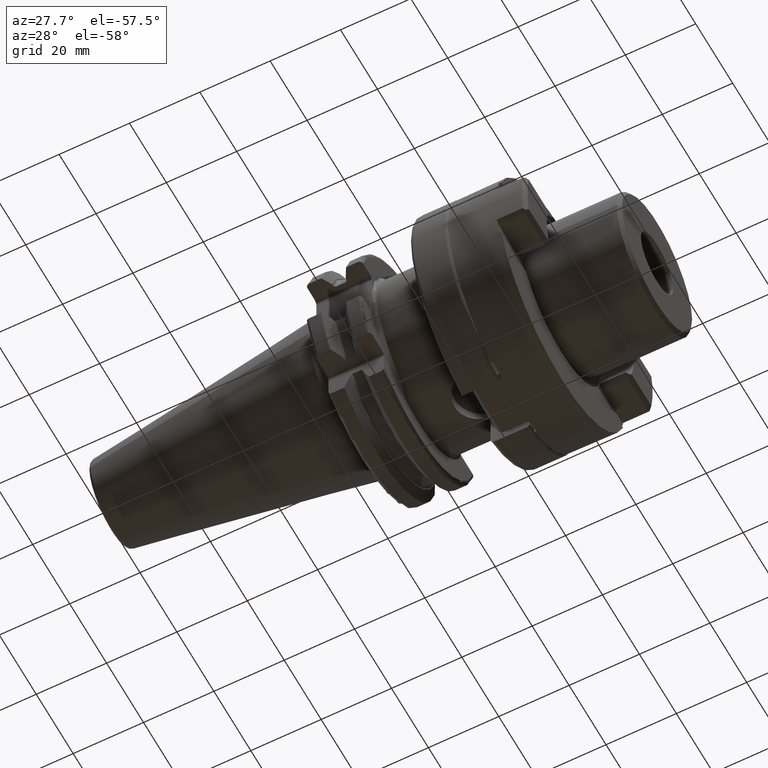
[diagram: clean part render]
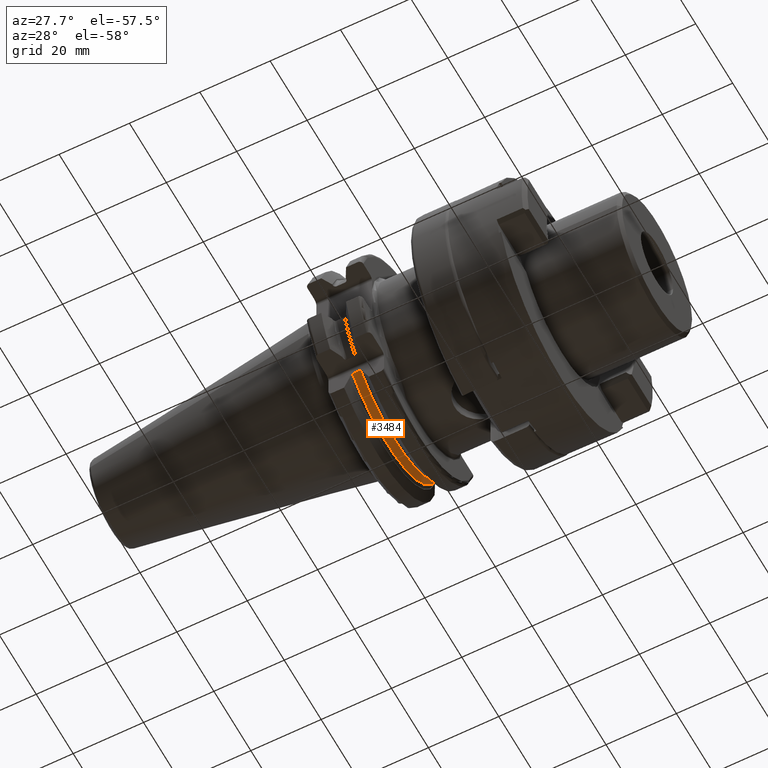
[diagram: same view with one face highlighted and labeled with its STEP entity id]
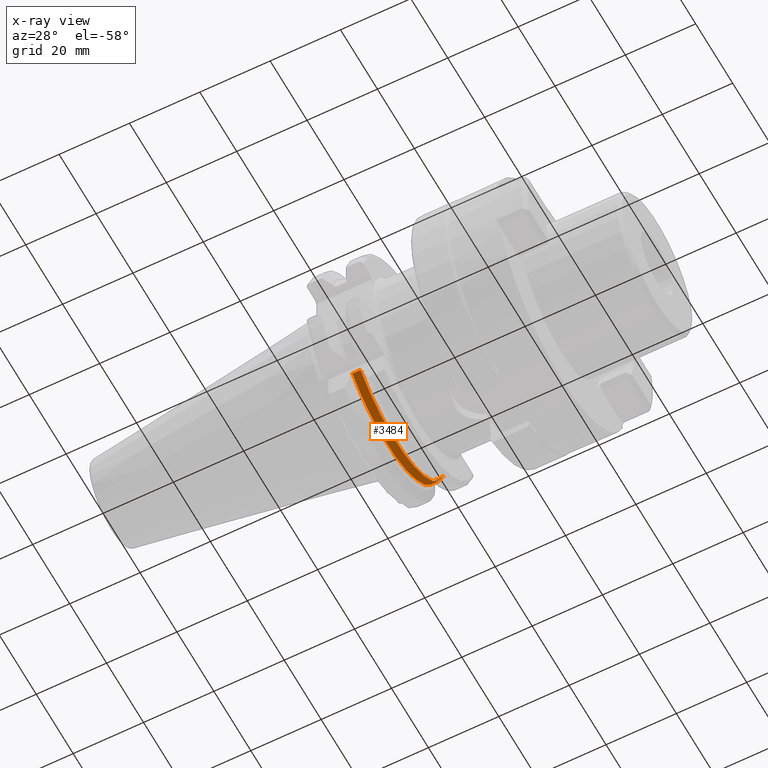
[diagram: x-ray of the same camera — body ghosted, the highlighted face saturated]
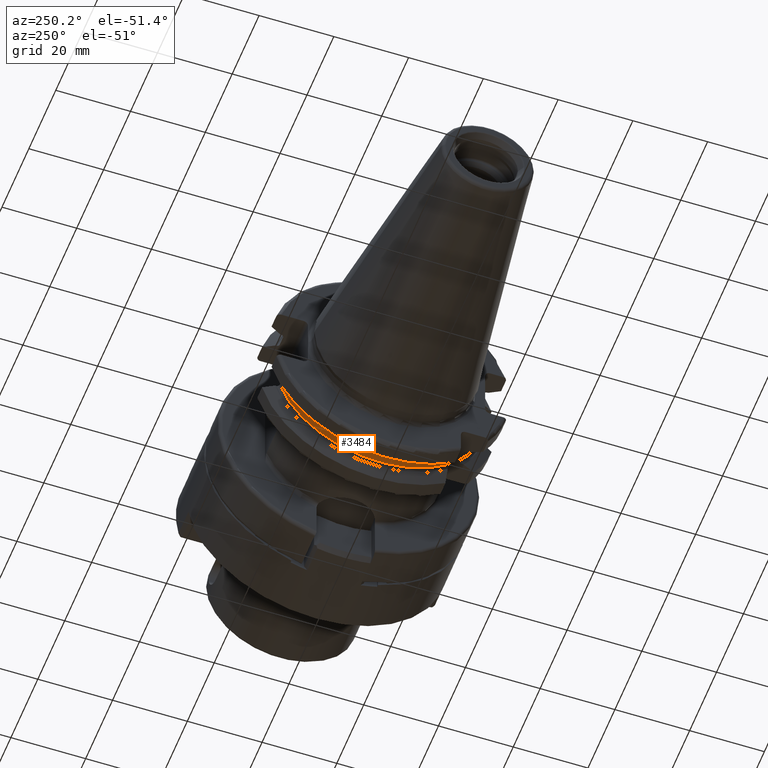
[diagram: same view with one face highlighted and labeled with its STEP entity id]
A machine part, auxiliary view. The second image highlights one B-rep face of the part: STEP entity #3484.
The next image is the same camera in x-ray: the body ghosted, the highlighted face saturated — about 1% of this face is hidden behind the body in this view.
A second angle (auxiliary view) of the same face is appended — the face is thin or edge-on in the first view.
In plain terms, the highlighted cylindrical surface (partial cylindrical patch) has radius 28 mm, axis along (1, 0, 0).
Its self-contained STEP definition (entity closure, byte-faithful):
#1263=CARTESIAN_POINT('',(1.23375E1,0.E0,0.E0));
#1264=DIRECTION('',(-1.E0,0.E0,0.E0));
#1265=DIRECTION('',(0.E0,9.572427986202E-1,-2.892857142857E-1));
#1266=AXIS2_PLACEMENT_3D('',#1263,#1264,#1265);
#1306=DIRECTION('',(1.E0,0.E0,0.E0));
#1307=VECTOR('',#1306,2.325E0);
#1308=CARTESIAN_POINT('',(1.00125E1,2.680279836137E1,-8.1E0));
#1309=LINE('',#1308,#1307);
#1310=CARTESIAN_POINT('',(1.00125E1,0.E0,0.E0));
#1311=DIRECTION('',(-1.E0,0.E0,0.E0));
#1312=DIRECTION('',(0.E0,9.572427986202E-1,-2.892857142857E-1));
#1313=AXIS2_PLACEMENT_3D('',#1310,#1311,#1312);
#1315=DIRECTION('',(1.E0,0.E0,0.E0));
#1316=VECTOR('',#1315,2.325E0);
#1317=CARTESIAN_POINT('',(1.00125E1,-1.835E1,-2.114893614346E1));
#1318=LINE('',#1317,#1316);
#1341=CARTESIAN_POINT('',(1.00125E1,2.680279836137E1,-8.1E0));
#1936=VERTEX_POINT('',#1341);
#1938=CARTESIAN_POINT('',(1.23375E1,2.680279836137E1,-8.1E0));
#1939=VERTEX_POINT('',#1938);
#1973=CARTESIAN_POINT('',(1.00125E1,-1.835E1,-2.114893614346E1));
#1974=VERTEX_POINT('',#1973);
#1975=CARTESIAN_POINT('',(1.23375E1,-1.835E1,-2.114893614346E1));
#1976=VERTEX_POINT('',#1975);
#3471=CARTESIAN_POINT('',(7.293041127536E0,0.E0,0.E0));
#3472=DIRECTION('',(1.E0,0.E0,0.E0));
#3473=DIRECTION('',(0.E0,-1.E0,0.E0));
#3474=AXIS2_PLACEMENT_3D('',#3471,#3472,#3473);
#3475=CYLINDRICAL_SURFACE('',#3474,2.8E1);
#3476=ORIENTED_EDGE('',*,*,#3205,.F.);
#3478=ORIENTED_EDGE('',*,*,#3477,.T.);
#3480=ORIENTED_EDGE('',*,*,#3479,.T.);
#3481=ORIENTED_EDGE('',*,*,#3449,.F.);
#3482=EDGE_LOOP('',(#3476,#3478,#3480,#3481));
#3483=FACE_OUTER_BOUND('',#3482,.F.);
#3484=ADVANCED_FACE('',(#3483),#3475,.T.);
#1267=CIRCLE('',#1266,2.8E1);
#1314=CIRCLE('',#1313,2.8E1);
#3205=EDGE_CURVE('',#1936,#1939,#1309,.T.);
#3449=EDGE_CURVE('',#1939,#1976,#1267,.T.);
#3477=EDGE_CURVE('',#1936,#1974,#1314,.T.);
#3479=EDGE_CURVE('',#1974,#1976,#1318,.T.);